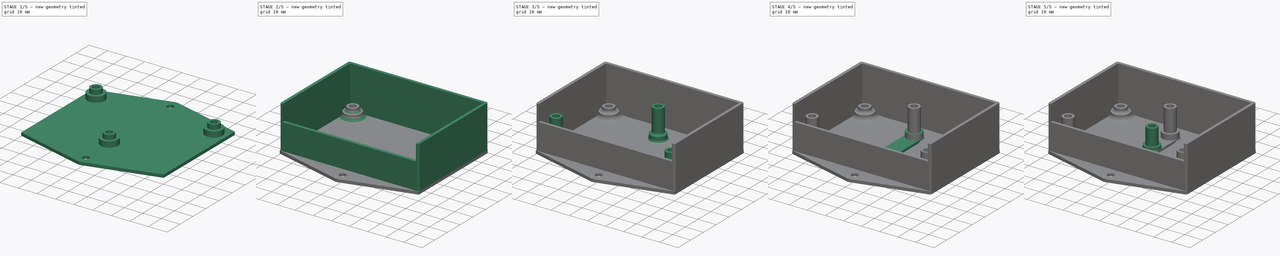
[diagram: build sequence overview — one tinted view per stage of 5, left to right]
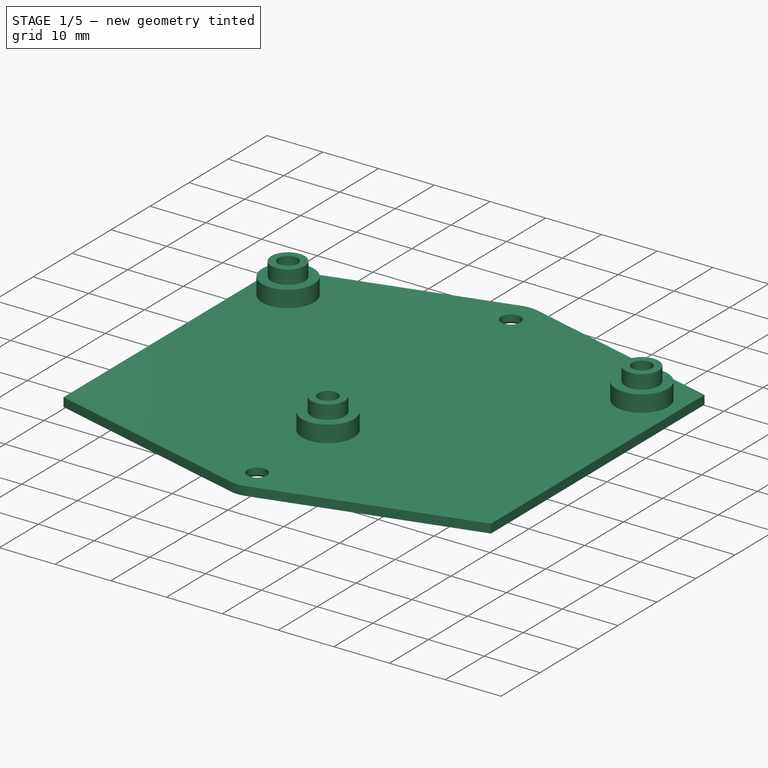
[diagram: stage 1 of 5 — iso view after this stage's code; geometry added in this stage tinted green]
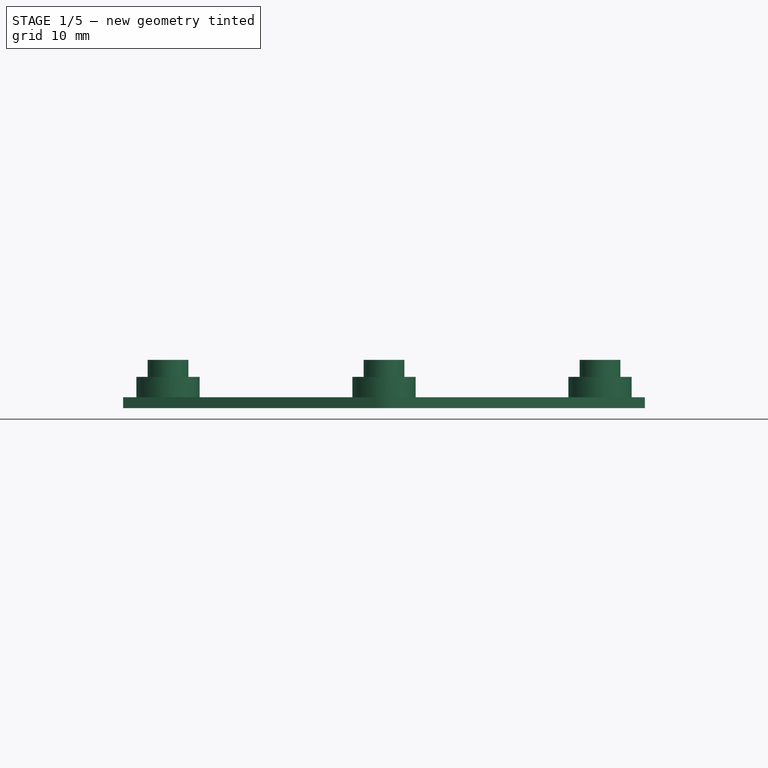
[diagram: stage 1 of 5 — front view after this stage's code; geometry added in this stage tinted green]
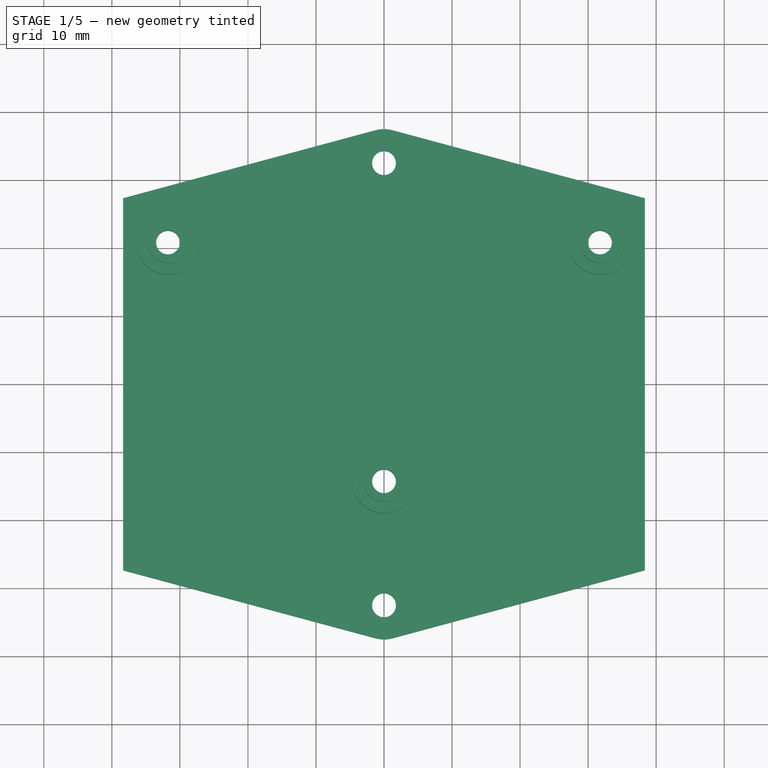
[diagram: stage 1 of 5 — top view after this stage's code; geometry added in this stage tinted green]
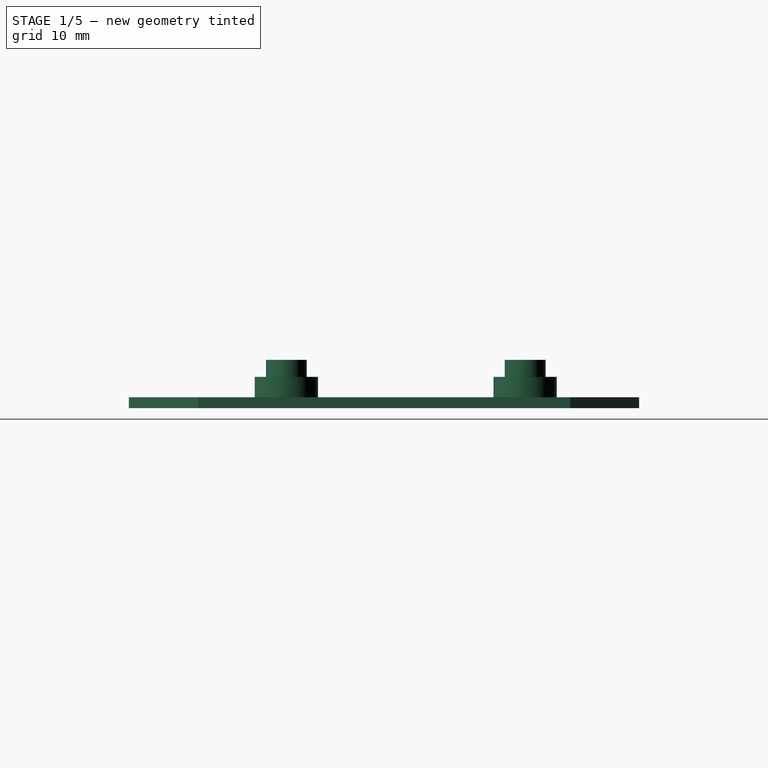
[diagram: stage 1 of 5 — right view after this stage's code; geometry added in this stage tinted green]
FCSTD DOCUMENT  (FreeCAD 0.16R)
Label: CarDetectorF030Case
License: All rights reserved
LicenseURL: http://en.wikipedia.org/wiki/All_rights_reserved
objects: Sketcher::SketchObject×20, PartDesign::Pad×14, PartDesign::Pocket×5, App::DocumentObjectGroup×5, PartDesign::Fillet×5, PartDesign::Chamfer×3
note: 66 computed .brp shape members not serialized (recipe doc carries the construction recipe); baked Part::Feature solids carry a one-line shape summary decoded from their .brp

FEATURE [Sketcher::SketchObject] Sketch  label="BottomBase"
  sketch-geometry (10):
    g0: LineSegment StartX=38.35 StartY=27.35 StartZ=0 EndX=38.35 EndY=-27.35 EndZ=0
    g1: LineSegment StartX=-38.35 StartY=-27.35 StartZ=0 EndX=-38.35 EndY=27.35 EndZ=0
    g2: Circle CenterX=0 CenterY=32.5 CenterZ=0 NormalX=0 NormalY=0 NormalZ=1 Radius=1.75
    g3: Circle CenterX=0 CenterY=-32.5 CenterZ=0 NormalX=0 NormalY=0 NormalZ=1 Radius=1.75
    g4: LineSegment StartX=-38.35 StartY=27.35 StartZ=0 EndX=-1.30022 EndY=37.328 EndZ=0
    g5: LineSegment StartX=38.35 StartY=27.35 StartZ=0 EndX=1.30024 EndY=37.328 EndZ=0
    g6: ArcOfCircle CenterX=0 CenterY=32.5 CenterZ=0 NormalX=0 NormalY=0 NormalZ=1 Radius=5 StartAngle=1.30772 EndAngle=1.83386
    g7: LineSegment StartX=-38.35 StartY=-27.35 StartZ=0 EndX=-1.30026 EndY=-37.328 EndZ=0
    g8: LineSegment StartX=38.35 StartY=-27.35 StartZ=0 EndX=1.30024 EndY=-37.328 EndZ=0
    g9: ArcOfCircle CenterX=0 CenterY=-32.5 CenterZ=0 NormalX=0 NormalY=0 NormalZ=1 Radius=5 StartAngle=4.44931 EndAngle=4.97546
  constraints (27):
    c: Vertical(g0)
    c: Coincident(g8,g9)
    c: Coincident(g3,g9)
    c: Coincident(g7,g9)
    c: Coincident(g5,g6)
    c: Coincident(g4,g6)
    c: Coincident(g2,g6)
    c: PointOnObject(g2,g-2)
    c: DistanceX(g1,g0) = 76.7
    c: Tangent(g6,g4)
    c: Tangent(g9,g7)
    c: Tangent(g9,g8)
    c: Radius(g6) = 5
    c: Radius(g2) = 1.75
    c: Equal(g6,g9)
    c: Equal(g3,g2)
    c: DistanceY(g1,g1) = 54.7
    c: Symmetric(g2,g3,g-1)
    c: DistanceY(g3,g2) = 65
    c: Coincident(g0,g5)
    c: Tangent(g5,g6)
    c: Coincident(g4,g1)
    c: Coincident(g8,g0)
    c: Coincident(g7,g1)
    c: Symmetric(g1,g0,g-2)
    c: Symmetric(g1,g0,g-2)
    c: Symmetric(g1,g1,g-1)
FEATURE [PartDesign::Pad] Pad
  Length = 1.6
  Length2 = 100
  Sketch = -> Sketch
  Type = 0
FEATURE [Sketcher::SketchObject] Sketch001  label="BottomNutHolders"
  Placement = pos=(0,0,1.6) rot=(0,0,1;0rad)
  Support = -> Pad [Face12]
  sketch-geometry (14):
    g0: LineSegment [constr] StartX=38.35 StartY=27.35 StartZ=0 EndX=38.35 EndY=-27.35 EndZ=0
    g1: LineSegment [constr] StartX=-38.35 StartY=-27.35 StartZ=0 EndX=-38.35 EndY=27.35 EndZ=0
    g2: LineSegment [constr] StartX=38.35 StartY=27.35 StartZ=0 EndX=-38.35 EndY=27.35 EndZ=0
    g3: LineSegment [constr] StartX=38.35 StartY=-27.35 StartZ=0 EndX=-38.35 EndY=-27.35 EndZ=0
    g4: Circle CenterX=0 CenterY=-14.35 CenterZ=0 NormalX=0 NormalY=0 NormalZ=1 Radius=4.65
    g5: Circle CenterX=0 CenterY=-14.35 CenterZ=0 NormalX=0 NormalY=0 NormalZ=1 Radius=1.75
    g6: Circle CenterX=-31.75 CenterY=20.75 CenterZ=0 NormalX=0 NormalY=0 NormalZ=1 Radius=4.65
    g7: Circle CenterX=31.75 CenterY=20.75 CenterZ=0 NormalX=0 NormalY=0 NormalZ=1 Radius=4.65
    g8: Circle CenterX=-31.75 CenterY=20.75 CenterZ=0 NormalX=0 NormalY=0 NormalZ=1 Radius=1.75
    g9: Circle CenterX=31.75 CenterY=20.75 CenterZ=0 NormalX=0 NormalY=0 NormalZ=1 Radius=1.75
    g10: LineSegment [constr] StartX=-36.25 StartY=25.25 StartZ=0 EndX=36.25 EndY=25.25 EndZ=0
    g11: LineSegment [constr] StartX=36.25 StartY=25.25 StartZ=0 EndX=36.25 EndY=-25.25 EndZ=0
    g12: LineSegment [constr] StartX=36.25 StartY=-25.25 StartZ=0 EndX=-36.25 EndY=-25.25 EndZ=0
    g13: LineSegment [constr] StartX=-36.25 StartY=-25.25 StartZ=0 EndX=-36.25 EndY=25.25 EndZ=0
  constraints (36):
    c: Horizontal(g2)
    c: Horizontal(g3)
    c: Vertical(g1)
    c: Vertical(g0)
    c: Coincident(g0,g3)
    c: Coincident(g0,g2)
    c: Symmetric(g1,g0,g-1)
    c: Coincident(g1,g3)
    c: Coincident(g1,g2)
    c: PointOnObject(g4,g-2)
    c: Radius(g4) = 4.65
    c: Coincident(g5,g4)
    c: Radius(g5) = 1.75
    c: Symmetric(g6,g7,g-2)
    c: Equal(g4,g6)
    c: Equal(g6,g7)
    c: Coincident(g8,g6)
    c: Coincident(g9,g7)
    c: Equal(g5,g9)
    c: Equal(g9,g8)
    c: Coincident(g10,g11)
    c: Coincident(g11,g12)
    c: Coincident(g12,g13)
    c: Coincident(g13,g10)
    c: Horizontal(g10)
    c: Horizontal(g12)
    c: Vertical(g11)
    c: Vertical(g13)
    c: Symmetric(g10,g11,g-1)
    c: DistanceX(g1,g10) = 2.1
    c: DistanceY(g10,g1) = 2.1
    c: DistanceY(g11,g4) = 10.9
    c: DistanceY(g6,g10) = 4.5
    c: DistanceX(g10,g6) = 4.5
    c: DistanceY(g12,g10) = 50.5
    c: DistanceX(g10,g10) = 72.5
FEATURE [PartDesign::Pad] Pad001
  Length = 3
  Length2 = 100
  Sketch = -> Sketch001
  Type = 0
FEATURE [App::DocumentObjectGroup] Group002  label="Top"
  Group = -> [Pad008,Pad009,Pocket002,Chamfer002,Pad010,Fillet001,Fillet004,Pocket005]
FEATURE [PartDesign::Pocket] Pocket
  Length = 3
  Sketch = -> Sketch015
  Type = 0
FEATURE [PartDesign::Chamfer] Chamfer
  Base = -> Pocket [Edge26,Edge25,Edge24,Edge23,Edge22,Edge27,Edge28,Edge29,Edge21,Edge16,Edge17,Edge18,Edge19,Edge20,Edge30,Edge31,Edge32,Edge33,Edge34,Edge35]
  Size = 0.4
FEATURE [Sketcher::SketchObject] Sketch003  label="BottomScrewPipes"
  ExternalGeometry = -> [Pad001]
  Placement = pos=(0,0,4.6) rot=(0,0,1;0rad)
  Support = -> Chamfer [Face58]
  sketch-geometry (6):
    g0: Circle CenterX=31.75 CenterY=20.75 CenterZ=0 NormalX=0 NormalY=0 NormalZ=1 Radius=1.75
    g1: Circle CenterX=31.75 CenterY=20.75 CenterZ=0 NormalX=0 NormalY=0 NormalZ=1 Radius=3
    g2: Circle CenterX=0 CenterY=-14.35 CenterZ=0 NormalX=0 NormalY=0 NormalZ=1 Radius=1.75
    g3: Circle CenterX=0 CenterY=-14.35 CenterZ=0 NormalX=0 NormalY=0 NormalZ=1 Radius=3
    g4: Circle CenterX=-31.75 CenterY=20.75 CenterZ=0 NormalX=0 NormalY=0 NormalZ=1 Radius=1.75
    g5: Circle CenterX=-31.75 CenterY=20.75 CenterZ=0 NormalX=0 NormalY=0 NormalZ=1 Radius=3
  constraints (12):
    c: Coincident(g1,g0)
    c: Radius(g1) = 3
    c: Radius(g0) = 1.75
    c: Coincident(g3,g2)
    c: Coincident(g5,g4)
    c: Equal(g0,g2)
    c: Equal(g2,g4)
    c: Equal(g1,g3)
    c: Equal(g3,g5)
    c: Coincident(g2,g-3)
    c: Coincident(g4,g-4)
    c: Coincident(g0,g-5)
FEATURE [PartDesign::Pad] Pad014
  Length = 2.5
  Length2 = 100
  Sketch = -> Sketch003
  Type = 0
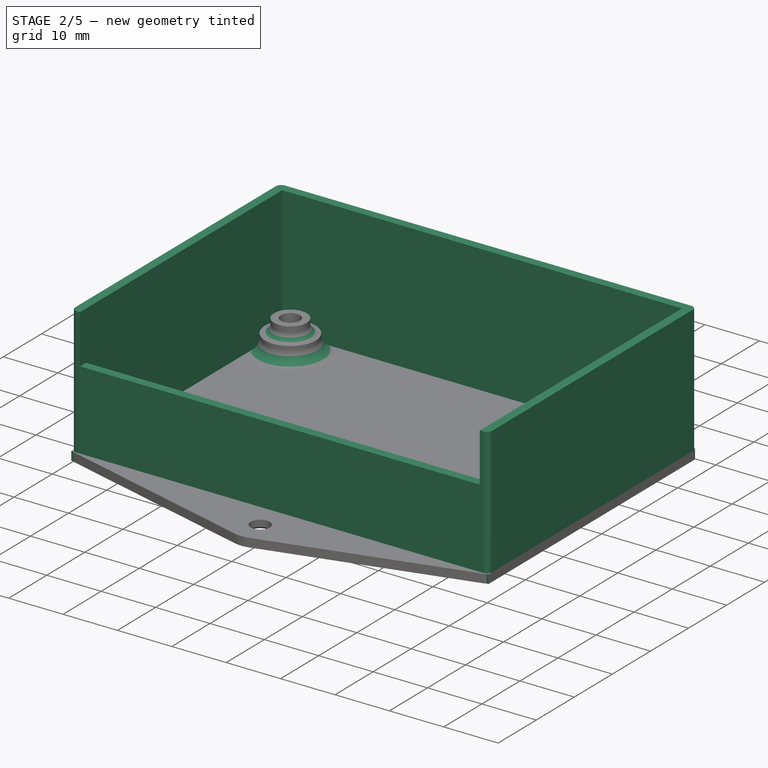
[diagram: stage 2 of 5 — iso view after this stage's code; geometry added in this stage tinted green]
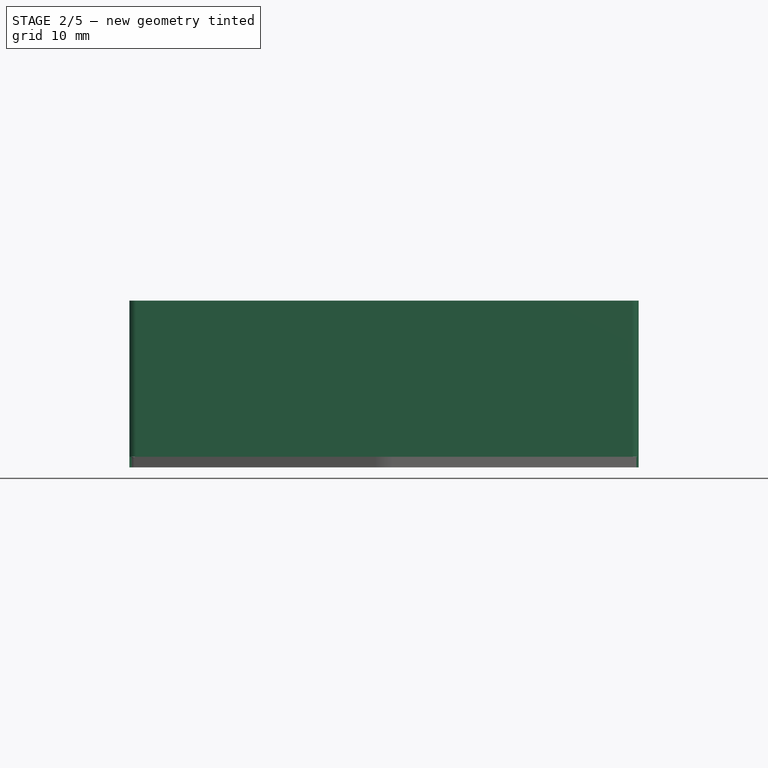
[diagram: stage 2 of 5 — front view after this stage's code; geometry added in this stage tinted green]
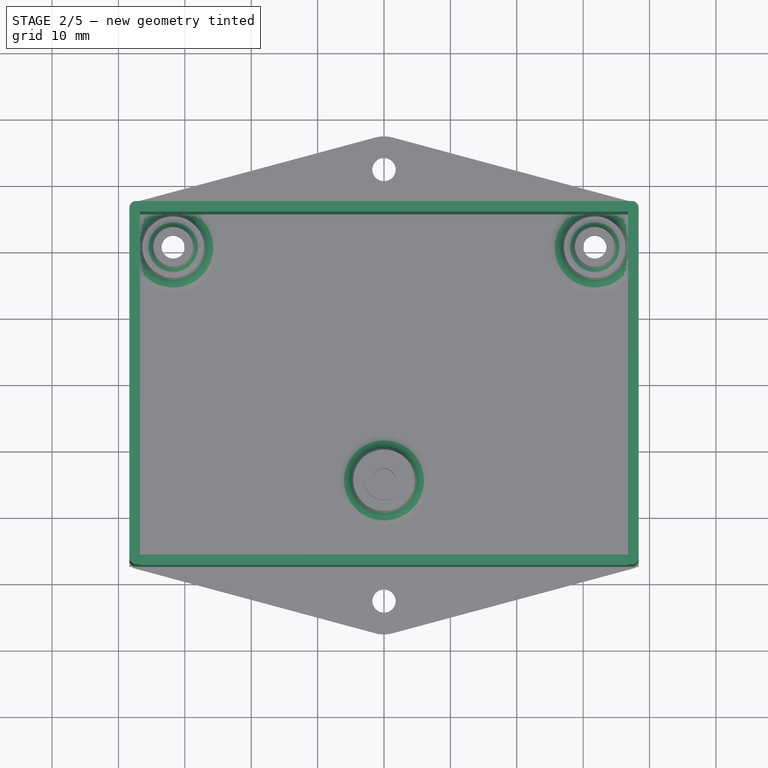
[diagram: stage 2 of 5 — top view after this stage's code; geometry added in this stage tinted green]
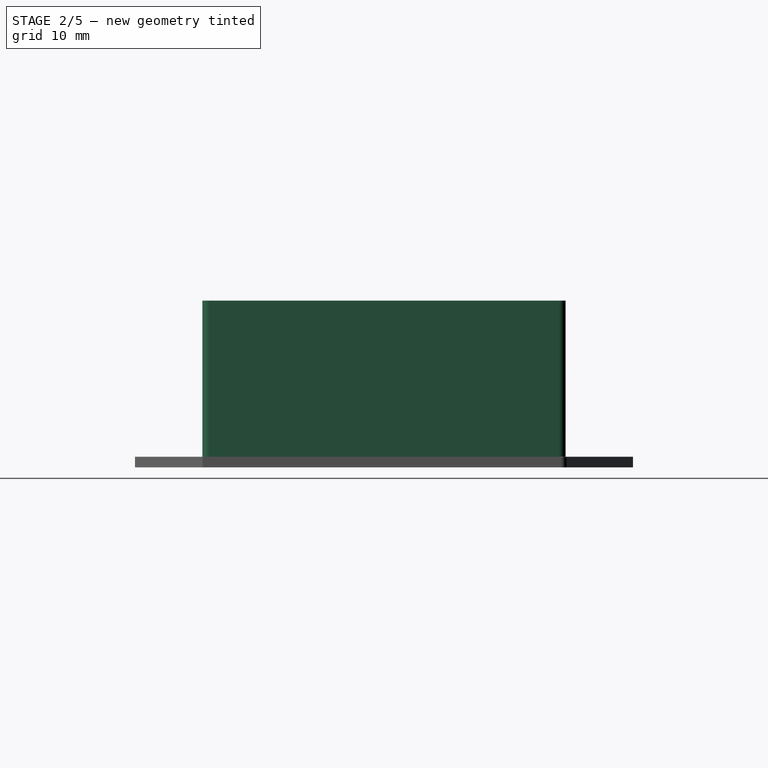
[diagram: stage 2 of 5 — right view after this stage's code; geometry added in this stage tinted green]
FEATURE [App::DocumentObjectGroup] Group001  label="Test"
  Group = -> [Pad004,Pad005,Pocket001,Pad006,Chamfer001]
FEATURE [Sketcher::SketchObject] Sketch011  label="TopBase"
  sketch-geometry (7):
    g0: LineSegment StartX=38.35 StartY=18.65 StartZ=0 EndX=38.35 EndY=-27.35 EndZ=0
    g1: LineSegment StartX=-38.35 StartY=-27.35 StartZ=0 EndX=-38.35 EndY=18.65 EndZ=0
    g2: LineSegment StartX=-38.35 StartY=-27.35 StartZ=0 EndX=38.35 EndY=-27.35 EndZ=0
    g3: LineSegment [constr] StartX=-38.35 StartY=27.35 StartZ=0 EndX=38.35 EndY=27.35 EndZ=0
    g4: LineSegment [constr] StartX=-38.35 StartY=18.65 StartZ=0 EndX=-38.35 EndY=27.35 EndZ=0
    g5: LineSegment [constr] StartX=38.35 StartY=27.35 StartZ=0 EndX=38.35 EndY=18.65 EndZ=0
    g6: LineSegment StartX=-38.35 StartY=18.65 StartZ=0 EndX=38.35 EndY=18.65 EndZ=0
  constraints (19):
    c: Horizontal(g2)
    c: Vertical(g1)
    c: Vertical(g0)
    c: Coincident(g1,g2)
    c: Coincident(g0,g2)
    c: Horizontal(g3)
    c: Coincident(g4,g1)
    c: Coincident(g4,g3)
    c: Vertical(g4)
    c: DistanceY(g1,g3) = 54.7
    c: Symmetric(g0,g3,g-1)
    c: DistanceX(g1,g0) = 76.7
    c: Coincident(g5,g3)
    c: Coincident(g5,g0)
    c: Vertical(g5)
    c: Equal(g4,g5)
    c: Coincident(g6,g1)
    c: Coincident(g6,g0)
    c: DistanceY(g5,g5) = 8.7
FEATURE [Sketcher::SketchObject] Sketch012  label="__base__"
  sketch-geometry (4):
    g0: LineSegment StartX=38.35 StartY=27.35 StartZ=0 EndX=38.35 EndY=-27.35 EndZ=0
    g1: LineSegment StartX=-38.35 StartY=-27.35 StartZ=0 EndX=-38.35 EndY=27.35 EndZ=0
    g2: LineSegment StartX=-38.35 StartY=27.35 StartZ=0 EndX=38.35 EndY=27.35 EndZ=0
    g3: LineSegment StartX=-38.35 StartY=-27.35 StartZ=0 EndX=38.35 EndY=-27.35 EndZ=0
  constraints (11):
    c: Horizontal(g2)
    c: Horizontal(g3)
    c: Vertical(g1)
    c: Vertical(g0)
    c: Coincident(g1,g3)
    c: Coincident(g1,g2)
    c: Symmetric(g1,g0,g-1)
    c: DistanceX(g1,g0) = 76.7
    c: DistanceY(g1,g1) = 54.7
    c: Coincident(g0,g3)
    c: Coincident(g0,g2)
FEATURE [PartDesign::Pad] Pad008
  Length = 1.6
  Length2 = 100
  Sketch = -> Sketch011
  Type = 0
FEATURE [Sketcher::SketchObject] Sketch005  label="BottomWalls"
  Placement = pos=(0,0,1.6) rot=(0,0,1;0rad)
  Support = -> Pad014 [Face36]
  sketch-geometry (8):
    g0: LineSegment StartX=38.35 StartY=27.35 StartZ=0 EndX=38.35 EndY=-27.35 EndZ=0
    g1: LineSegment StartX=-38.35 StartY=-27.35 StartZ=0 EndX=-38.35 EndY=27.35 EndZ=0
    g2: LineSegment StartX=38.35 StartY=27.35 StartZ=0 EndX=-38.35 EndY=27.35 EndZ=0
    g3: LineSegment StartX=38.35 StartY=-27.35 StartZ=0 EndX=-38.35 EndY=-27.35 EndZ=0
    g4: LineSegment StartX=-36.75 StartY=25.75 StartZ=0 EndX=36.75 EndY=25.75 EndZ=0
    g5: LineSegment StartX=36.75 StartY=25.75 StartZ=0 EndX=36.75 EndY=-25.75 EndZ=0
    g6: LineSegment StartX=36.75 StartY=-25.75 StartZ=0 EndX=-36.75 EndY=-25.75 EndZ=0
    g7: LineSegment StartX=-36.75 StartY=-25.75 StartZ=0 EndX=-36.75 EndY=25.75 EndZ=0
  constraints (22):
    c: Horizontal(g2)
    c: Horizontal(g3)
    c: Vertical(g1)
    c: Vertical(g0)
    c: Coincident(g0,g3)
    c: Coincident(g0,g2)
    c: Symmetric(g1,g0,g-1)
    c: DistanceX(g1,g0) = 76.7
    c: DistanceY(g1,g1) = 54.7
    c: Coincident(g1,g3)
    c: Coincident(g1,g2)
    c: Coincident(g4,g5)
    c: Coincident(g5,g6)
    c: Coincident(g6,g7)
    c: Coincident(g7,g4)
    c: Horizontal(g4)
    c: Horizontal(g6)
    c: Vertical(g5)
    c: Vertical(g7)
    c: Symmetric(g4,g5,g-1)
    c: DistanceX(g1,g4) = 1.6
    c: DistanceY(g4,g1) = 1.6
FEATURE [PartDesign::Pad] Pad015
  Length = 14.5
  Length2 = 100
  Sketch = -> Sketch005
  Type = 0
FEATURE [Sketcher::SketchObject] Sketch010  label="BottomWallsExtra"
  Placement = pos=(0,0,16.1) rot=(0,0,1;0rad)
  Support = -> Pad015 [Face56]
  sketch-geometry (8):
    g0: LineSegment StartX=38.35 StartY=27.35 StartZ=0 EndX=38.35 EndY=-27.35 EndZ=0
    g1: LineSegment StartX=-38.35 StartY=-27.35 StartZ=0 EndX=-38.35 EndY=27.35 EndZ=0
    g2: LineSegment StartX=38.35 StartY=27.35 StartZ=0 EndX=-38.35 EndY=27.35 EndZ=0
    g3: LineSegment StartX=-36.75 StartY=25.75 StartZ=0 EndX=36.75 EndY=25.75 EndZ=0
    g4: LineSegment StartX=36.75 StartY=25.75 StartZ=0 EndX=36.75 EndY=-27.35 EndZ=0
    g5: LineSegment StartX=-36.75 StartY=-27.35 StartZ=0 EndX=-36.75 EndY=25.75 EndZ=0
    g6: LineSegment StartX=-36.75 StartY=-27.35 StartZ=0 EndX=-38.35 EndY=-27.35 EndZ=0
    g7: LineSegment StartX=36.75 StartY=-27.35 StartZ=0 EndX=38.35 EndY=-27.35 EndZ=0
  constraints (23):
    c: Horizontal(g2)
    c: Vertical(g1)
    c: Vertical(g0)
    c: Coincident(g0,g2)
    c: Symmetric(g1,g0,g-1)
    c: DistanceX(g1,g0) = 76.7
    c: DistanceY(g1,g1) = 54.7
    c: Coincident(g1,g2)
    c: Coincident(g3,g4)
    c: Coincident(g5,g3)
    c: Horizontal(g3)
    c: Vertical(g4)
    c: Vertical(g5)
    c: DistanceY(g3,g1) = 1.6
    c: Coincident(g6,g5)
    c: Coincident(g6,g1)
    c: Horizontal(g6)
    c: Coincident(g7,g4)
    c: Coincident(g7,g0)
    c: Horizontal(g7)
    c: DistanceX(g7,g7) = 1.6
    c: Equal(g6,g7)
    c: Equal(g1,g0)
FEATURE [PartDesign::Pad] Pad016
  Length = 9
  Length2 = 100
  Sketch = -> Sketch010
  Type = 0
FEATURE [PartDesign::Fillet] Fillet
  Base = -> Pad016 [Edge50,Edge106,Edge143,Edge54,Edge104,Edge141,Edge45,Edge101,Edge137,Edge41,Edge99,Edge135]
  Radius = 1
FEATURE [PartDesign::Fillet] Fillet005
  Base = -> Fillet [Edge227,Edge226,Edge228]
  Radius = 2.4
FEATURE [PartDesign::Fillet] Fillet006
  Base = -> Fillet005 [Edge96,Edge77]
  Radius = 1.5
FEATURE [App::DocumentObjectGroup] Group  label="Bottom"
  Group = -> [Pad,Pad001,Pocket,Chamfer,Pad014,Pad015,Pad016,Fillet,Fillet005,Fillet006]
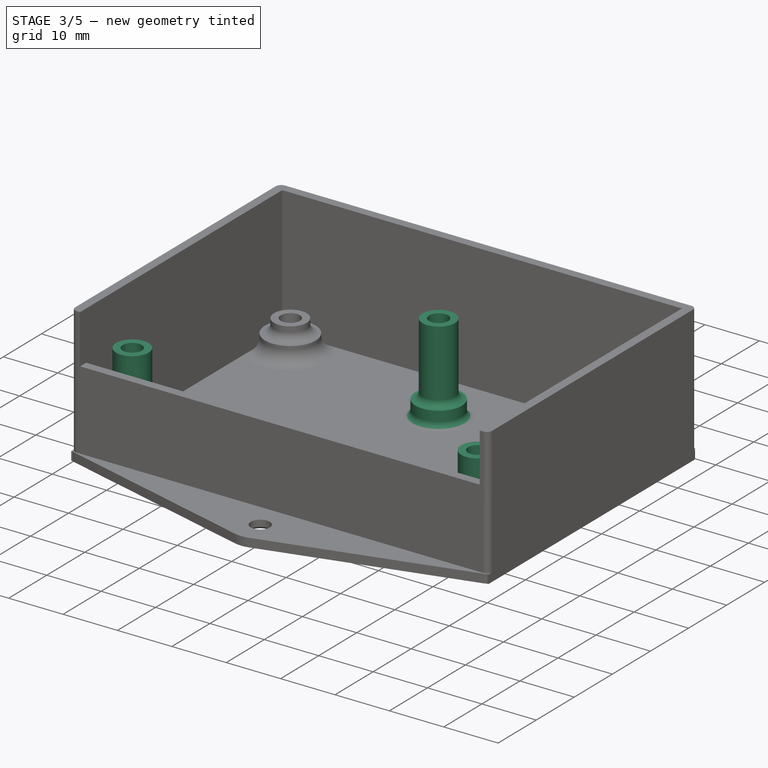
[diagram: stage 3 of 5 — iso view after this stage's code; geometry added in this stage tinted green]
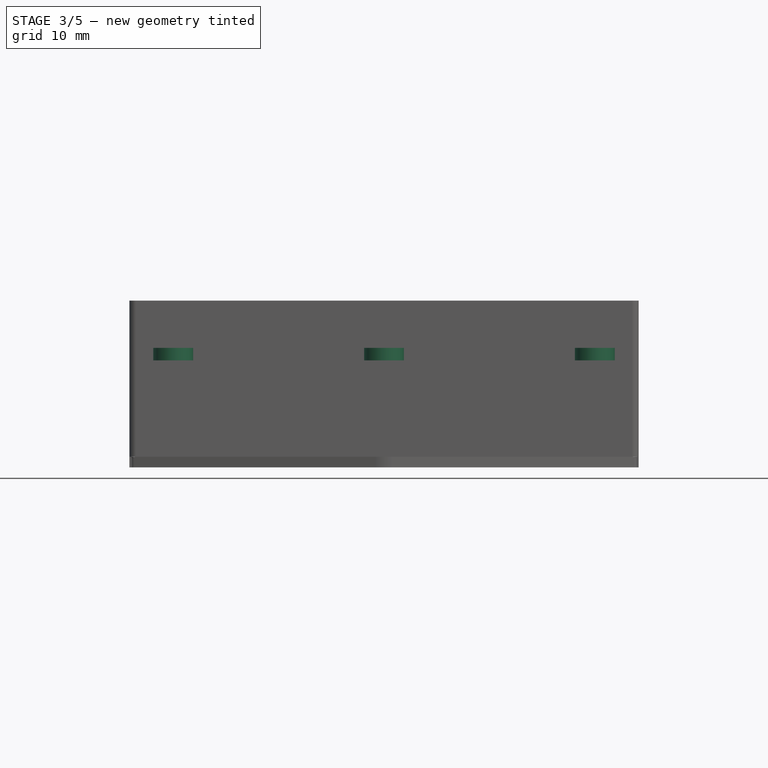
[diagram: stage 3 of 5 — front view after this stage's code; geometry added in this stage tinted green]
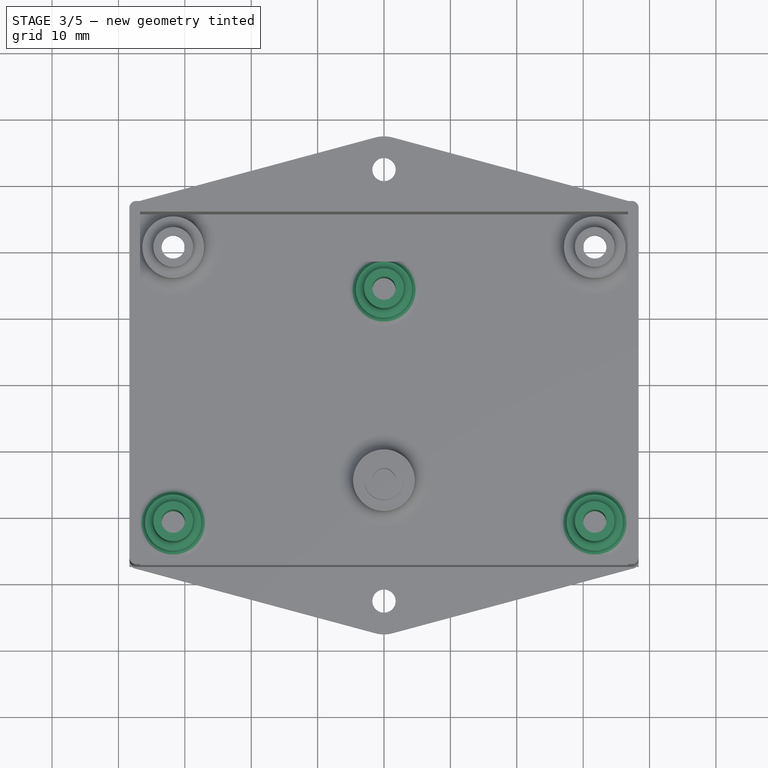
[diagram: stage 3 of 5 — top view after this stage's code; geometry added in this stage tinted green]
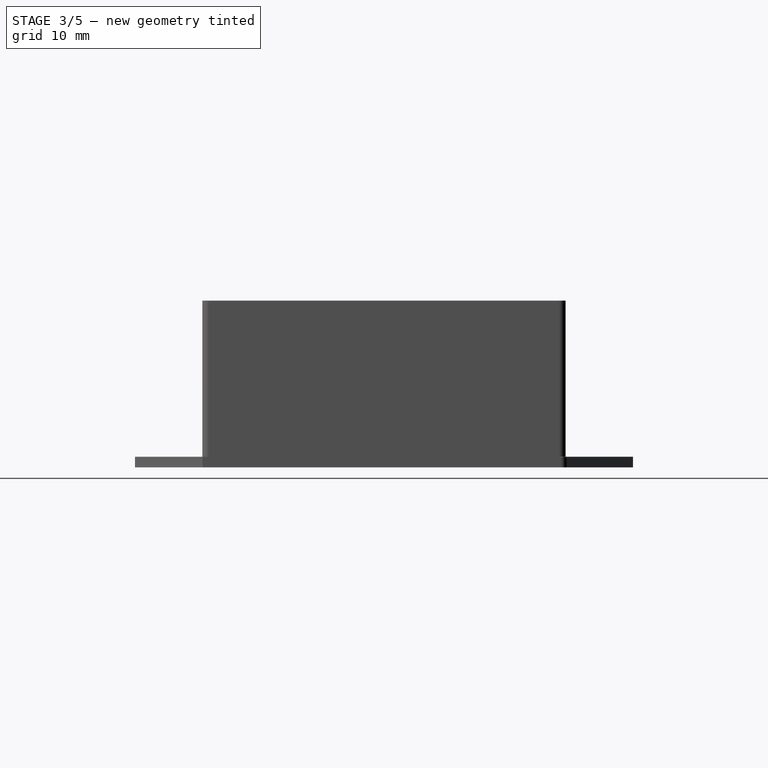
[diagram: stage 3 of 5 — right view after this stage's code; geometry added in this stage tinted green]
FEATURE [Sketcher::SketchObject] MirroredSketch  label="TopScrewHeadHolders"
  Placement = pos=(0,0,1.6) rot=(0,0,1;0rad)
  Support = -> Pad008 [Face6]
  sketch-geometry (14):
    g0: LineSegment [constr] StartX=38.35 StartY=-27.35 StartZ=0 EndX=38.35 EndY=27.35 EndZ=0
    g1: LineSegment [constr] StartX=-38.35 StartY=27.35 StartZ=0 EndX=-38.35 EndY=-27.35 EndZ=0
    g2: LineSegment [constr] StartX=38.35 StartY=-27.35 StartZ=0 EndX=-38.35 EndY=-27.35 EndZ=0
    g3: LineSegment [constr] StartX=38.35 StartY=27.35 StartZ=0 EndX=-38.35 EndY=27.35 EndZ=0
    g4: Circle CenterX=0 CenterY=14.35 CenterZ=0 NormalX=0 NormalY=0 NormalZ=1 Radius=4.25
    g5: Circle CenterX=0 CenterY=14.35 CenterZ=0 NormalX=0 NormalY=0 NormalZ=1 Radius=1.75
    g6: Circle CenterX=-31.75 CenterY=-20.75 CenterZ=0 NormalX=0 NormalY=0 NormalZ=1 Radius=4.25
    g7: Circle CenterX=31.75 CenterY=-20.75 CenterZ=0 NormalX=0 NormalY=0 NormalZ=1 Radius=4.25
    g8: Circle CenterX=-31.75 CenterY=-20.75 CenterZ=0 NormalX=0 NormalY=0 NormalZ=1 Radius=1.75
    g9: Circle CenterX=31.75 CenterY=-20.75 CenterZ=0 NormalX=0 NormalY=0 NormalZ=1 Radius=1.75
    g10: LineSegment [constr] StartX=-36.25 StartY=25.25 StartZ=0 EndX=36.25 EndY=25.25 EndZ=0
    g11: LineSegment [constr] StartX=36.25 StartY=25.25 StartZ=0 EndX=36.25 EndY=-25.25 EndZ=0
    g12: LineSegment [constr] StartX=36.25 StartY=-25.25 StartZ=0 EndX=-36.25 EndY=-25.25 EndZ=0
    g13: LineSegment [constr] StartX=-36.25 StartY=-25.25 StartZ=0 EndX=-36.25 EndY=25.25 EndZ=0
  constraints (36):
    c: Horizontal(g2)
    c: Horizontal(g3)
    c: Vertical(g1)
    c: Vertical(g0)
    c: Coincident(g0,g3)
    c: Coincident(g0,g2)
    c: Coincident(g1,g3)
    c: Coincident(g1,g2)
    c: Radius(g4) = 4.25
    c: Coincident(g5,g4)
    c: Radius(g5) = 1.75
    c: Equal(g4,g6)
    c: Equal(g6,g7)
    c: Coincident(g8,g6)
    c: Coincident(g9,g7)
    c: Equal(g5,g9)
    c: Equal(g9,g8)
    c: Symmetric(g6,g7,g-2)
    c: DistanceX(g1,g0) = 76.7
    c: DistanceY(g1,g1) = 54.7
    c: Symmetric(g0,g1,g-1)
    c: PointOnObject(g4,g-2)
    c: Coincident(g10,g11)
    c: Coincident(g11,g12)
    c: Coincident(g12,g13)
    c: Coincident(g13,g10)
    c: Horizontal(g10)
    c: Horizontal(g12)
    c: Vertical(g11)
    c: Vertical(g13)
    c: Symmetric(g10,g11,g-1)
    c: DistanceX(g1,g10) = 2.1
    c: DistanceY(g10,g1) = 2.1
    c: DistanceY(g4,g10) = 10.9
    c: DistanceX(g12,g6) = 4.5
    c: DistanceY(g12,g6) = 4.5
FEATURE [PartDesign::Pad] Pad009
  Length = 3
  Length2 = 100
  Sketch = -> MirroredSketch
  Type = 0
FEATURE [Sketcher::SketchObject] Sketch013  label="TopScrewHeadHoles"
  ExternalGeometry = -> [Pad009]
  Placement = pos=(0,0,0) rot=(1,0,0;3.14159rad)
  Support = -> Pad009 [Face4]
  sketch-geometry (3):
    g0: Circle CenterX=-31.75 CenterY=20.75 CenterZ=0 NormalX=0 NormalY=0 NormalZ=1 Radius=3
    g1: Circle CenterX=31.75 CenterY=20.75 CenterZ=0 NormalX=0 NormalY=0 NormalZ=1 Radius=3
    g2: Circle CenterX=0 CenterY=-14.35 CenterZ=0 NormalX=0 NormalY=0 NormalZ=1 Radius=3
  constraints (6):
    c: Coincident(g0,g-3)
    c: Coincident(g1,g-4)
    c: Coincident(g2,g-5)
    c: Equal(g1,g0)
    c: Equal(g0,g2)
    c: Radius(g0) = 3
FEATURE [PartDesign::Pocket] Pocket002
  Length = 3
  Sketch = -> Sketch013
  Type = 0
FEATURE [PartDesign::Chamfer] Chamfer002
  Base = -> Pocket002 [Edge12,Edge13,Edge14]
  Size = 0.4
FEATURE [Sketcher::SketchObject] Sketch014  label="TopScrewPipes"
  ExternalGeometry = -> [Pocket002]
  Placement = pos=(0,0,4.6) rot=(0,0,1;0rad)
  Support = -> Chamfer002 [Face21]
  sketch-geometry (6):
    g0: Circle CenterX=0 CenterY=14.35 CenterZ=0 NormalX=0 NormalY=0 NormalZ=1 Radius=1.75
    g1: Circle CenterX=0 CenterY=14.35 CenterZ=0 NormalX=0 NormalY=0 NormalZ=1 Radius=3
    g2: Circle CenterX=31.75 CenterY=-20.75 CenterZ=0 NormalX=0 NormalY=0 NormalZ=1 Radius=1.75
    g3: Circle CenterX=31.75 CenterY=-20.75 CenterZ=0 NormalX=0 NormalY=0 NormalZ=1 Radius=3
    g4: Circle CenterX=-31.75 CenterY=-20.75 CenterZ=0 NormalX=0 NormalY=0 NormalZ=1 Radius=1.75
    g5: Circle CenterX=-31.75 CenterY=-20.75 CenterZ=0 NormalX=0 NormalY=0 NormalZ=1 Radius=3
  constraints (12):
    c: Coincident(g0,g-3)
    c: Coincident(g1,g0)
    c: Coincident(g2,g-4)
    c: Coincident(g3,g2)
    c: Coincident(g4,g-5)
    c: Coincident(g5,g4)
    c: Equal(g0,g4)
    c: Equal(g4,g2)
    c: Equal(g1,g3)
    c: Equal(g3,g5)
    c: Radius(g0) = 1.75
    c: Radius(g1) = 3
FEATURE [PartDesign::Pad] Pad010
  Length = 13.4
  Length2 = 100
  Sketch = -> Sketch014
  Type = 0
FEATURE [App::DocumentObjectGroup] Group003  label="TMP"
FEATURE [Sketcher::SketchObject] Sketch015  label="BottomNutHoles"
  ExternalGeometry = -> [Pad001]
  Placement = pos=(0,0,0) rot=(1,0,0;3.14159rad)
  Support = -> Pad001 [Face4]
  sketch-geometry (21):
    g0: LineSegment StartX=1.65 StartY=11.4921 StartZ=0 EndX=3.3 EndY=14.35 EndZ=0
    g1: LineSegment StartX=3.3 StartY=14.35 StartZ=0 EndX=1.65 EndY=17.2079 EndZ=0
    g2: LineSegment StartX=1.65 StartY=17.2079 StartZ=0 EndX=-1.65 EndY=17.2079 EndZ=0
    g3: LineSegment StartX=-1.65 StartY=17.2079 StartZ=0 EndX=-3.3 EndY=14.35 EndZ=0
    g4: LineSegment StartX=-3.3 StartY=14.35 StartZ=0 EndX=-1.65 EndY=11.4921 EndZ=0
    g5: LineSegment StartX=-1.65 StartY=11.4921 StartZ=0 EndX=1.65 EndY=11.4921 EndZ=0
    g6: Circle [constr] CenterX=0 CenterY=14.35 CenterZ=0 NormalX=0 NormalY=0 NormalZ=1 Radius=3.3
    g7: LineSegment StartX=33.4 StartY=-23.6079 StartZ=0 EndX=35.05 EndY=-20.75 EndZ=0
    g8: LineSegment StartX=35.05 StartY=-20.75 StartZ=0 EndX=33.4 EndY=-17.8921 EndZ=0
    g9: LineSegment StartX=33.4 StartY=-17.8921 StartZ=0 EndX=30.1 EndY=-17.8921 EndZ=0
    g10: LineSegment StartX=30.1 StartY=-17.8921 StartZ=0 EndX=28.45 EndY=-20.75 EndZ=0
    g11: LineSegment StartX=28.45 StartY=-20.75 StartZ=0 EndX=30.1 EndY=-23.6079 EndZ=0
    g12: LineSegment StartX=30.1 StartY=-23.6079 StartZ=0 EndX=33.4 EndY=-23.6079 EndZ=0
    g13: Circle [constr] CenterX=31.75 CenterY=-20.75 CenterZ=0 NormalX=0 NormalY=0 NormalZ=1 Radius=3.3
    g14: LineSegment StartX=-30.1 StartY=-23.6079 StartZ=0 EndX=-28.45 EndY=-20.75 EndZ=0
    g15: LineSegment StartX=-28.45 StartY=-20.75 StartZ=0 EndX=-30.1 EndY=-17.8921 EndZ=0
    g16: LineSegment StartX=-30.1 StartY=-17.8921 StartZ=0 EndX=-33.4 EndY=-17.8921 EndZ=0
    g17: LineSegment StartX=-33.4 StartY=-17.8921 StartZ=0 EndX=-35.05 EndY=-20.75 EndZ=0
    g18: LineSegment StartX=-35.05 StartY=-20.75 StartZ=0 EndX=-33.4 EndY=-23.6079 EndZ=0
    g19: LineSegment StartX=-33.4 StartY=-23.6079 StartZ=0 EndX=-30.1 EndY=-23.6079 EndZ=0
    g20: Circle [constr] CenterX=-31.75 CenterY=-20.75 CenterZ=0 NormalX=0 NormalY=0 NormalZ=1 Radius=3.3
  constraints (48):
    c: Coincident(g0,g1)
    c: Coincident(g1,g2)
    c: Coincident(g2,g3)
    c: Coincident(g3,g4)
    c: Coincident(g4,g5)
    c: Coincident(g5,g0)
    c: Equal(g0, g1-g5) x5
    c: PointOnObject(g0,g6)
    c: PointOnObject(g1,g6)
    c: PointOnObject(g2,g6)
    c: PointOnObject(g3,g6)
    c: PointOnObject(g4,g6)
    c: PointOnObject(g5,g6)
    c: Coincident(g7,g8)
    c: Coincident(g8,g9)
    c: Coincident(g9,g10)
    c: Coincident(g10,g11)
    c: Coincident(g11,g12)
    c: Coincident(g12,g7)
    c: Equal(g7, g8-g12) x5
    c: PointOnObject(g7,g13)
    c: PointOnObject(g8,g13)
    c: PointOnObject(g9,g13)
    c: PointOnObject(g10,g13)
    c: PointOnObject(g11,g13)
    c: PointOnObject(g12,g13)
    c: Coincident(g14,g15)
    c: Coincident(g15,g16)
    c: Coincident(g16,g17)
    c: Coincident(g17,g18)
    c: Coincident(g18,g19)
    c: Coincident(g19,g14)
    c: Equal(g14, g15-g19) x5
    c: PointOnObject(g14,g20)
    c: PointOnObject(g15,g20)
    c: PointOnObject(g16,g20)
    c: PointOnObject(g17,g20)
    c: PointOnObject(g18,g20)
    c: PointOnObject(g19,g20)
    c: Horizontal(g2)
    c: Horizontal(g9)
    c: Horizontal(g16)
    c: Equal(g6,g13)
    c: Equal(g13,g20)
    c: Radius(g6) = 3.3
    c: Coincident(g13,g-4)
    c: Coincident(g20,g-5)
    c: Coincident(g6,g-3)
FEATURE [PartDesign::Fillet] Fillet001
  Base = -> Pad010 [Edge25,Edge43,Edge24,Edge42,Edge26,Edge44]
  Radius = 1.2
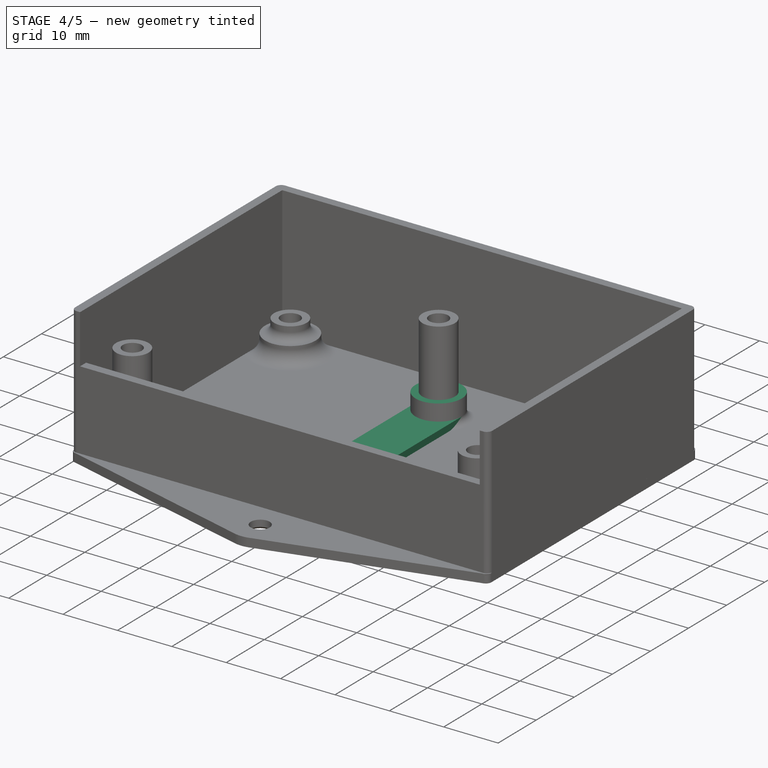
[diagram: stage 4 of 5 — iso view after this stage's code; geometry added in this stage tinted green]
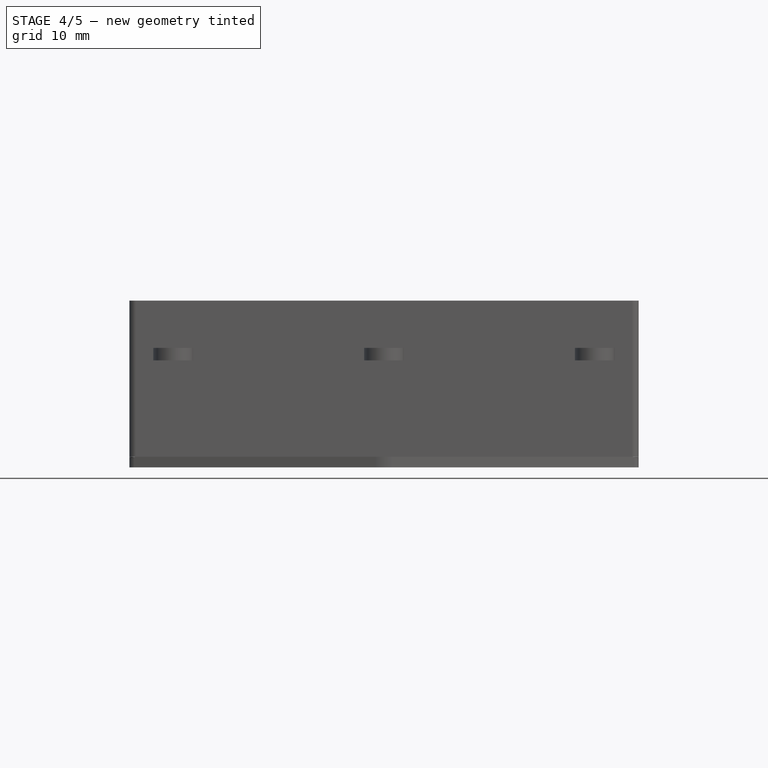
[diagram: stage 4 of 5 — front view after this stage's code; geometry added in this stage tinted green]
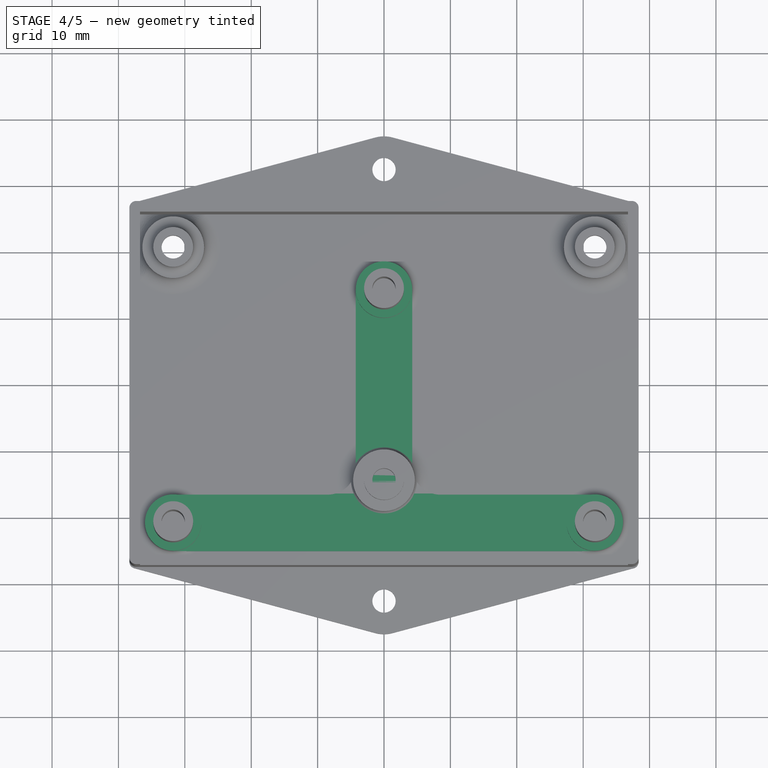
[diagram: stage 4 of 5 — top view after this stage's code; geometry added in this stage tinted green]
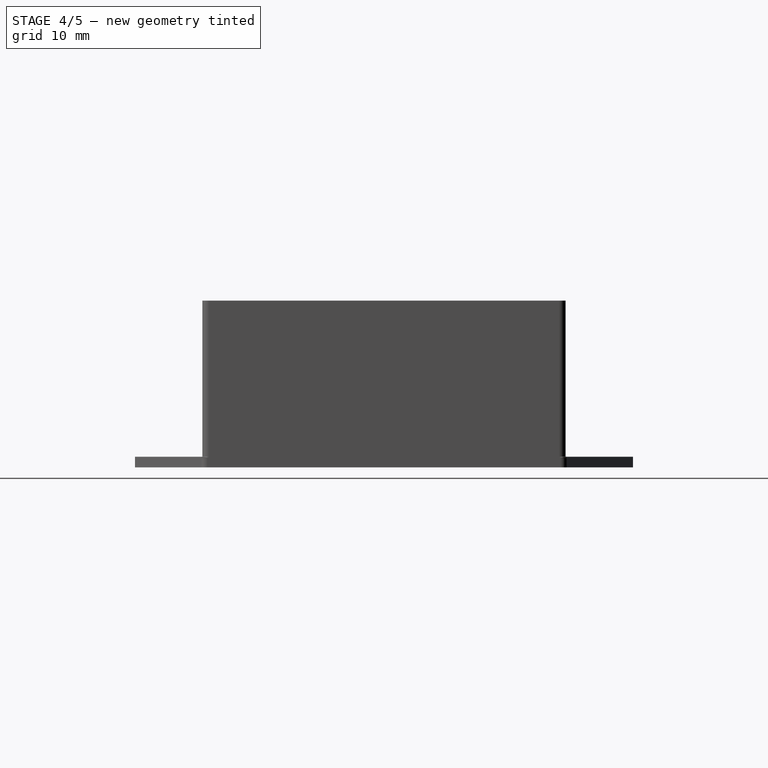
[diagram: stage 4 of 5 — right view after this stage's code; geometry added in this stage tinted green]
FEATURE [Sketcher::SketchObject] MirroredSketch001  label="Test2Base"
  Placement = pos=(0,0,1.6) rot=(0,0,1;0rad)
  sketch-geometry (21):
    g0: LineSegment [constr] StartX=38.35 StartY=-27.35 StartZ=0 EndX=38.35 EndY=27.35 EndZ=0
    g1: LineSegment [constr] StartX=-38.35 StartY=27.35 StartZ=0 EndX=-38.35 EndY=-27.35 EndZ=0
    g2: LineSegment [constr] StartX=38.35 StartY=-27.35 StartZ=0 EndX=-38.35 EndY=-27.35 EndZ=0
    g3: LineSegment [constr] StartX=38.35 StartY=27.35 StartZ=0 EndX=-38.35 EndY=27.35 EndZ=0
    g4: LineSegment [constr] StartX=-36.25 StartY=25.25 StartZ=0 EndX=36.25 EndY=25.25 EndZ=0
    g5: LineSegment [constr] StartX=36.25 StartY=25.25 StartZ=0 EndX=36.25 EndY=-25.25 EndZ=0
    g6: LineSegment [constr] StartX=36.25 StartY=-25.25 StartZ=0 EndX=-36.25 EndY=-25.25 EndZ=0
    g7: LineSegment [constr] StartX=-36.25 StartY=-25.25 StartZ=0 EndX=-36.25 EndY=25.25 EndZ=0
    g8: LineSegment [constr] StartX=4.25 StartY=14.35 StartZ=0 EndX=-4.25 EndY=14.35 EndZ=0
    g9: LineSegment StartX=-4.25 StartY=14.35 StartZ=0 EndX=-4.25 EndY=-12.25 EndZ=0
    g10: LineSegment StartX=-8.49999 StartY=-16.5 StartZ=0 EndX=-31.75 EndY=-16.5 EndZ=0
    g11: LineSegment [constr] StartX=-31.75 StartY=-16.5 StartZ=0 EndX=-31.75 EndY=-25 EndZ=0
    g12: LineSegment StartX=-31.75 StartY=-25 StartZ=0 EndX=31.75 EndY=-25 EndZ=0
    g13: LineSegment StartX=31.75 StartY=-16.5 StartZ=0 EndX=8.49999 EndY=-16.5 EndZ=0
    g14: LineSegment StartX=4.25 StartY=-12.25 StartZ=0 EndX=4.25 EndY=14.35 EndZ=0
    g15: ArcOfCircle CenterX=31.75 CenterY=-20.75 CenterZ=0 NormalX=0 NormalY=0 NormalZ=1 Radius=4.25 StartAngle=4.71239 EndAngle=7.85398
    g16: ArcOfCircle CenterX=0 CenterY=14.35 CenterZ=0 NormalX=0 NormalY=0 NormalZ=1 Radius=4.25 StartAngle=0 EndAngle=3.14159
    g17: ArcOfCircle CenterX=-31.75 CenterY=-20.75 CenterZ=0 NormalX=0 NormalY=0 NormalZ=1 Radius=4.25 StartAngle=1.5708 EndAngle=4.71239
    g18: LineSegment [constr] StartX=31.75 StartY=-16.5 StartZ=0 EndX=31.75 EndY=-25 EndZ=0
    g19: ArcOfCircle CenterX=-8.5 CenterY=-12.25 CenterZ=0 NormalX=0 NormalY=0 NormalZ=1 Radius=4.25 StartAngle=4.71239 EndAngle=6.28318
    g20: ArcOfCircle CenterX=8.49998 CenterY=-12.25 CenterZ=0 NormalX=0 NormalY=0 NormalZ=1 Radius=4.24998 StartAngle=3.14159 EndAngle=4.71239
  constraints (61):
    c: Horizontal(g2)
    c: Horizontal(g3)
    c: Vertical(g1)
    c: Vertical(g0)
    c: Coincident(g0,g3)
    c: Coincident(g0,g2)
    c: Coincident(g1,g3)
    c: Coincident(g1,g2)
    c: DistanceX(g1,g0) = 76.7
    c: DistanceY(g1,g1) = 54.7
    c: Symmetric(g0,g1,g-1)
    c: Coincident(g4,g5)
    c: Coincident(g5,g6)
    c: Coincident(g6,g7)
    c: Coincident(g7,g4)
    c: Horizontal(g4)
    c: Horizontal(g6)
    c: Vertical(g5)
    c: Vertical(g7)
    c: Symmetric(g4,g5,g-1)
    c: DistanceX(g1,g4) = 2.1
    c: DistanceY(g4,g1) = 2.1
    c: Horizontal(g8)
    c: Coincident(g8,g9)
    c: Vertical(g9)
    c: Horizontal(g10)
    c: Coincident(g10,g11)
    c: Vertical(g11)
    c: Coincident(g11,g12)
    c: Horizontal(g12)
    c: Horizontal(g13)
    c: Coincident(g14,g8)
    c: Vertical(g14)
    c: Coincident(g15,g13)
    c: Coincident(g15,g12)
    c: Coincident(g16,g8)
    c: Coincident(g16,g8)
    c: Radius(g16) = 4.25
    c: Coincident(g17,g10)
    c: Coincident(g17,g11)
    c: Equal(g16,g17)
    c: Symmetric(g9,g14,g-2)
    c: Symmetric(g10,g13,g-2)
    c: PointOnObject(g17,g11)
    c: Coincident(g18,g13)
    c: Coincident(g18,g12)
    c: Vertical(g18)
    c: PointOnObject(g15,g18)
    c: PointOnObject(g16,g8)
    c: Symmetric(g17,g15,g-2)
    c: DistanceY(g16,g4) = 10.9
    c: DistanceX(g6,g17) = 4.5
    c: DistanceY(g6,g17) = 4.5
    c: Coincident(g19,g9)
    c: Coincident(g19,g10)
    c: Coincident(g20,g14)
    c: Coincident(g20,g13)
    c: Tangent(g19,g9)
    c: Tangent(g10,g19)
    c: Tangent(g20,g13)
    c: Equal(g16,g19)
FEATURE [PartDesign::Pad] Pad011
  Length = 1.2
  Length2 = 100
  Placement = pos=(0,0,1.6) rot=(0,0,1;0rad)
  Sketch = -> MirroredSketch001
  Type = 0
FEATURE [Sketcher::SketchObject] MirroredSketch002  label="Test2ScrewHeadHolders"
  Placement = pos=(0,0,2.8) rot=(0,0,1;0rad)
  Support = -> Pad011 [Face12]
  sketch-geometry (14):
    g0: LineSegment [constr] StartX=38.35 StartY=-27.35 StartZ=0 EndX=38.35 EndY=27.35 EndZ=0
    g1: LineSegment [constr] StartX=-38.35 StartY=27.35 StartZ=0 EndX=-38.35 EndY=-27.35 EndZ=0
    g2: LineSegment [constr] StartX=38.35 StartY=-27.35 StartZ=0 EndX=-38.35 EndY=-27.35 EndZ=0
    g3: LineSegment [constr] StartX=38.35 StartY=27.35 StartZ=0 EndX=-38.35 EndY=27.35 EndZ=0
    g4: Circle CenterX=0 CenterY=14.35 CenterZ=0 NormalX=0 NormalY=0 NormalZ=1 Radius=4.25
    g5: Circle CenterX=0 CenterY=14.35 CenterZ=0 NormalX=0 NormalY=0 NormalZ=1 Radius=1.75
    g6: Circle CenterX=-31.75 CenterY=-20.75 CenterZ=0 NormalX=0 NormalY=0 NormalZ=1 Radius=4.25
    g7: Circle CenterX=31.75 CenterY=-20.75 CenterZ=0 NormalX=0 NormalY=0 NormalZ=1 Radius=4.25
    g8: Circle CenterX=-31.75 CenterY=-20.75 CenterZ=0 NormalX=0 NormalY=0 NormalZ=1 Radius=1.75
    g9: Circle CenterX=31.75 CenterY=-20.75 CenterZ=0 NormalX=0 NormalY=0 NormalZ=1 Radius=1.75
    g10: LineSegment [constr] StartX=-36.25 StartY=25.25 StartZ=0 EndX=36.25 EndY=25.25 EndZ=0
    g11: LineSegment [constr] StartX=36.25 StartY=25.25 StartZ=0 EndX=36.25 EndY=-25.25 EndZ=0
    g12: LineSegment [constr] StartX=36.25 StartY=-25.25 StartZ=0 EndX=-36.25 EndY=-25.25 EndZ=0
    g13: LineSegment [constr] StartX=-36.25 StartY=-25.25 StartZ=0 EndX=-36.25 EndY=25.25 EndZ=0
  constraints (36):
    c: Horizontal(g2)
    c: Horizontal(g3)
    c: Vertical(g1)
    c: Vertical(g0)
    c: Coincident(g0,g3)
    c: Coincident(g0,g2)
    c: Coincident(g1,g3)
    c: Coincident(g1,g2)
    c: Radius(g4) = 4.25
    c: Coincident(g5,g4)
    c: Radius(g5) = 1.75
    c: Equal(g4,g6)
    c: Equal(g6,g7)
    c: Coincident(g8,g6)
    c: Coincident(g9,g7)
    c: Equal(g5,g9)
    c: Equal(g9,g8)
    c: Symmetric(g6,g7,g-2)
    c: DistanceX(g1,g0) = 76.7
    c: DistanceY(g1,g1) = 54.7
    c: DistanceX(g1,g6) = 6.6
    c: DistanceY(g1,g6) = 6.6
    c: Symmetric(g0,g1,g-1)
    c: PointOnObject(g4,g-2)
    c: Coincident(g10,g11)
    c: Coincident(g11,g12)
    c: Coincident(g12,g13)
    c: Coincident(g13,g10)
    c: Horizontal(g10)
    c: Horizontal(g12)
    c: Vertical(g11)
    c: Vertical(g13)
    c: Symmetric(g10,g11,g-1)
    c: DistanceX(g1,g10) = 2.1
    c: DistanceY(g10,g1) = 2.1
    c: DistanceY(g4,g10) = 10.9
FEATURE [PartDesign::Pad] Pad012
  Length = 3
  Length2 = 100
  Placement = pos=(0,0,1.6) rot=(0,0,1;0rad)
  Sketch = -> MirroredSketch002
  Type = 0
FEATURE [Sketcher::SketchObject] Sketch017  label="Test2ScrewHeadHoles"
  ExternalGeometry = -> [Pad012]
  Placement = pos=(0,0,1.6) rot=(1,0,0;3.14159rad)
  Support = -> Pad012 [Face4]
  sketch-geometry (3):
    g0: Circle CenterX=-31.75 CenterY=20.75 CenterZ=0 NormalX=0 NormalY=0 NormalZ=1 Radius=3
    g1: Circle CenterX=31.75 CenterY=20.75 CenterZ=0 NormalX=0 NormalY=0 NormalZ=1 Radius=3
    g2: Circle CenterX=0 CenterY=-14.35 CenterZ=0 NormalX=0 NormalY=0 NormalZ=1 Radius=3
  constraints (6):
    c: Equal(g1,g0)
    c: Equal(g0,g2)
    c: Radius(g0) = 3
    c: Coincident(g0,g-3)
    c: Coincident(g1,g-5)
    c: Coincident(g2,g-4)
FEATURE [PartDesign::Pocket] Pocket004
  Length = 3
  Placement = pos=(0,0,1.6) rot=(0,0,1;0rad)
  Sketch = -> Sketch017
  Type = 0
FEATURE [Sketcher::SketchObject] Sketch018  label="Test2ScrewPipes"
  ExternalGeometry = -> [Pocket004]
  Placement = pos=(0,0,5.8) rot=(0,0,1;0rad)
  Support = -> Pocket004 [Face22]
  sketch-geometry (6):
    g0: Circle CenterX=0 CenterY=14.35 CenterZ=0 NormalX=0 NormalY=0 NormalZ=1 Radius=1.75
    g1: Circle CenterX=0 CenterY=14.35 CenterZ=0 NormalX=0 NormalY=0 NormalZ=1 Radius=3
    g2: Circle CenterX=31.75 CenterY=-20.75 CenterZ=0 NormalX=0 NormalY=0 NormalZ=1 Radius=1.75
    g3: Circle CenterX=31.75 CenterY=-20.75 CenterZ=0 NormalX=0 NormalY=0 NormalZ=1 Radius=3
    g4: Circle CenterX=-31.75 CenterY=-20.75 CenterZ=0 NormalX=0 NormalY=0 NormalZ=1 Radius=1.75
    g5: Circle CenterX=-31.75 CenterY=-20.75 CenterZ=0 NormalX=0 NormalY=0 NormalZ=1 Radius=3
  constraints (12):
    c: Coincident(g1,g0)
    c: Coincident(g3,g2)
    c: Coincident(g5,g4)
    c: Equal(g0,g4)
    c: Equal(g4,g2)
    c: Equal(g1,g3)
    c: Equal(g3,g5)
    c: Radius(g0) = 1.75
    c: Radius(g1) = 3
    c: Coincident(g0,g-4)
    c: Coincident(g4,g-3)
    c: Coincident(g2,g-5)
FEATURE [PartDesign::Pad] Pad013
  Length = 10
  Length2 = 100
  Placement = pos=(0,0,1.6) rot=(0,0,1;0rad)
  Sketch = -> Sketch018
  Type = 0
FEATURE [App::DocumentObjectGroup] Group004  label="Test2"
  Group = -> [Pad011,Pad012,Pocket004,Pad013]
FEATURE [PartDesign::Fillet] Fillet004
  Base = -> Fillet001 [Edge3,Edge17,Edge24,Edge6]
  Radius = 1
FEATURE [Sketcher::SketchObject] Sketch016  label="TopJumperHoles"
  Placement = pos=(0,0,0) rot=(1,0,0;3.14159rad)
  Support = -> Fillet004 [Face5]
  sketch-geometry (23):
    g0: LineSegment [constr] StartX=38.35 StartY=27.35 StartZ=0 EndX=38.35 EndY=-27.35 EndZ=0
    g1: LineSegment [constr] StartX=-38.35 StartY=-27.35 StartZ=0 EndX=-38.35 EndY=27.35 EndZ=0
    g2: LineSegment [constr] StartX=-38.35 StartY=27.35 StartZ=0 EndX=38.35 EndY=27.35 EndZ=0
    g3: LineSegment [constr] StartX=-38.35 StartY=-27.35 StartZ=0 EndX=38.35 EndY=-27.35 EndZ=0
    g4: LineSegment StartX=-34.75 StartY=14.75 StartZ=0 EndX=-30.75 EndY=14.75 EndZ=0
    g5: LineSegment StartX=-30.75 StartY=14.75 StartZ=0 EndX=-30.75 EndY=5.75 EndZ=0
    g6: LineSegment StartX=-30.75 StartY=5.75 StartZ=0 EndX=-34.75 EndY=5.75 EndZ=0
    g7: LineSegment StartX=-34.75 StartY=5.75 StartZ=0 EndX=-34.75 EndY=14.75 EndZ=0
    g8: LineSegment [constr] StartX=-36.25 StartY=25.25 StartZ=0 EndX=36.25 EndY=25.25 EndZ=0
    g9: LineSegment [constr] StartX=36.25 StartY=25.25 StartZ=0 EndX=36.25 EndY=-25.25 EndZ=0
    g10: LineSegment [constr] StartX=36.25 StartY=-25.25 StartZ=0 EndX=-36.25 EndY=-25.25 EndZ=0
    g11: LineSegment [constr] StartX=-36.25 StartY=-25.25 StartZ=0 EndX=-36.25 EndY=25.25 EndZ=0
    g12: LineSegment StartX=-7.75 StartY=19.25 StartZ=0 EndX=-3.75 EndY=19.25 EndZ=0
    g13: LineSegment StartX=-3.75 StartY=19.25 StartZ=0 EndX=-3.75 EndY=10.25 EndZ=0
    g14: LineSegment StartX=-7.75 StartY=3.75 StartZ=0 EndX=-7.75 EndY=19.25 EndZ=0
    g15: LineSegment StartX=2.25 StartY=10.25 StartZ=0 EndX=2.25 EndY=3.75 EndZ=0
    g16: LineSegment StartX=2.25 StartY=3.75 StartZ=0 EndX=-7.75 EndY=3.75 EndZ=0
    g17: LineSegment StartX=20.75 StartY=14.75 StartZ=0 EndX=24.75 EndY=14.75 EndZ=0
    g18: LineSegment StartX=24.75 StartY=14.75 StartZ=0 EndX=24.75 EndY=5.75 EndZ=0
    g19: LineSegment StartX=24.75 StartY=5.75 StartZ=0 EndX=20.75 EndY=5.75 EndZ=0
    g20: LineSegment StartX=20.75 StartY=5.75 StartZ=0 EndX=20.75 EndY=14.75 EndZ=0
    g21: Circle CenterX=5 CenterY=9 CenterZ=0 NormalX=0 NormalY=0 NormalZ=1 Radius=2
    g22: LineSegment StartX=-3.75 StartY=10.25 StartZ=0 EndX=2.25 EndY=10.25 EndZ=0
  constraints (67):
    c: Horizontal(g2)
    c: Horizontal(g3)
    c: Vertical(g1)
    c: Vertical(g0)
    c: Coincident(g1,g3)
    c: Coincident(g1,g2)
    c: Symmetric(g1,g0,g-1)
    c: DistanceX(g1,g0) = 76.7
    c: DistanceY(g1,g1) = 54.7
    c: Coincident(g0,g3)
    c: Coincident(g0,g2)
    c: Coincident(g4,g5)
    c: Coincident(g5,g6)
    c: Coincident(g6,g7)
    c: Coincident(g7,g4)
    c: Horizontal(g4)
    c: Horizontal(g6)
    c: Vertical(g5)
    c: Vertical(g7)
    c: DistanceX(g4,g4) = 4
    c: DistanceY(g7,g7) = 9
    c: Coincident(g8,g9)
    c: Coincident(g9,g10)
    c: Coincident(g10,g11)
    c: Coincident(g11,g8)
    c: Horizontal(g8)
    c: Horizontal(g10)
    c: Vertical(g9)
    c: Vertical(g11)
    c: Symmetric(g8,g9,g-1)
    c: DistanceX(g1,g8) = 2.1
    c: DistanceY(g0,g9) = 2.1
    c: DistanceY(g4,g8) = 10.5
    c: DistanceX(g8,g4) = 1.5
    c: Coincident(g12,g13)
    c: Coincident(g14,g12)
    c: Horizontal(g12)
    c: Vertical(g13)
    c: Vertical(g14)
    c: DistanceX(g8,g12) = 28.5
    c: DistanceX(g12,g12) = 4
    c: DistanceY(g12,g8) = 6
    c: Coincident(g15,g16)
    c: Horizontal(g16)
    c: Vertical(g15)
    c: Coincident(g17,g18)
    c: Coincident(g18,g19)
    c: Coincident(g19,g20)
    c: Coincident(g20,g17)
    c: Horizontal(g17)
    c: Horizontal(g19)
    c: Vertical(g18)
    c: Vertical(g20)
    c: DistanceX(g17,g17) = 4
    c: DistanceY(g20,g20) = 9
    c: DistanceX(g17,g8) = 11.5
    c: DistanceY(g17,g8) = 10.5
    c: DistanceY(g21,g8) = 16.25
    c: DistanceX(g21,g8) = 31.25
    c: Radius(g21) = 2
    c: Coincident(g14,g16)
    c: DistanceY(g14,g12) = 15.5
    c: DistanceY(g13,g12) = 9
    c: Coincident(g22,g13)
    c: Horizontal(g22)
    c: Coincident(g15,g22)
    c: DistanceX(g16,g16) = 10
FEATURE [PartDesign::Pocket] Pocket005
  Length = 5
  Sketch = -> Sketch016
  Type = 2
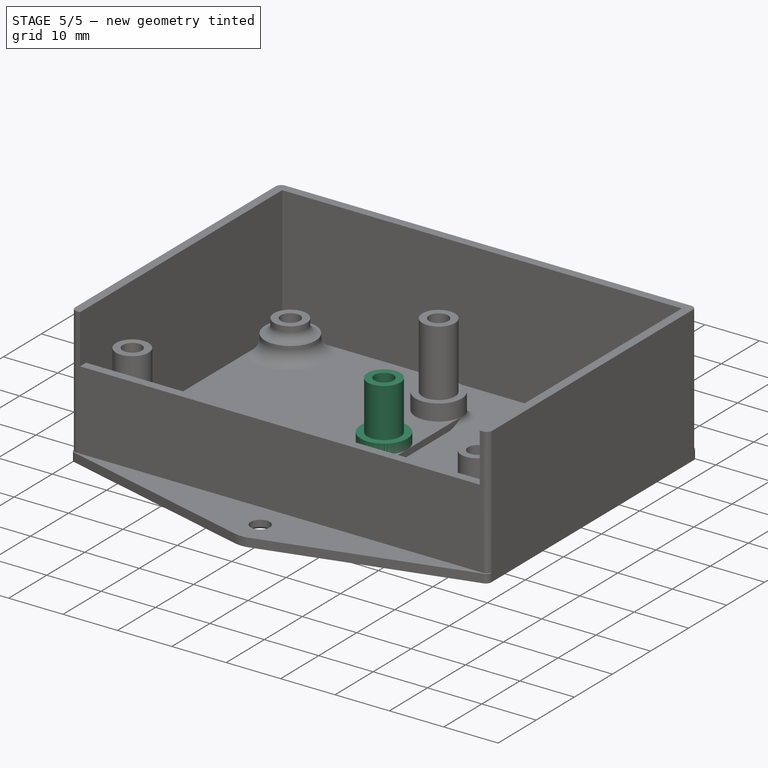
[diagram: stage 5 of 5 — iso view after this stage's code; geometry added in this stage tinted green]
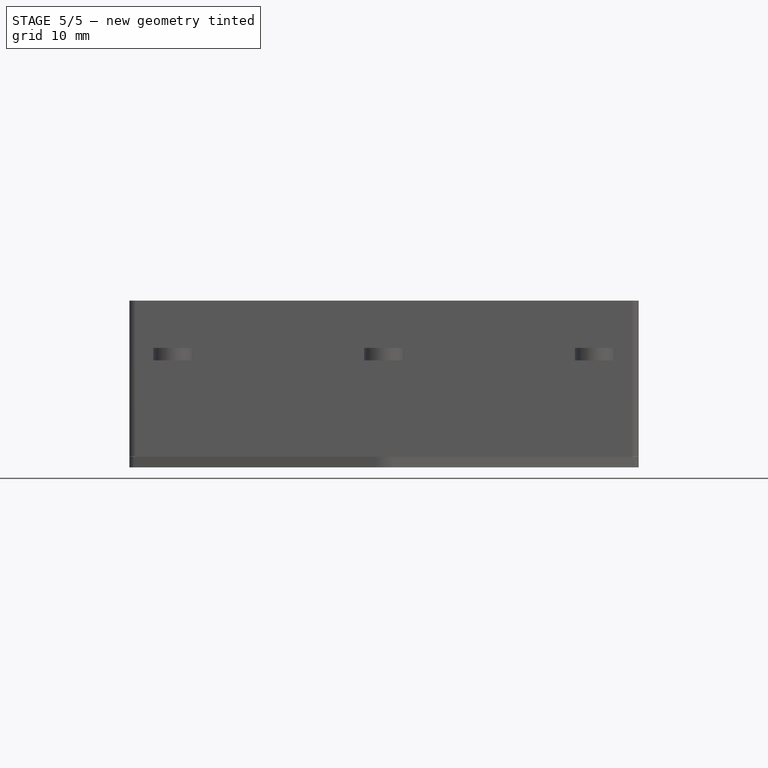
[diagram: stage 5 of 5 — front view after this stage's code; geometry added in this stage tinted green]
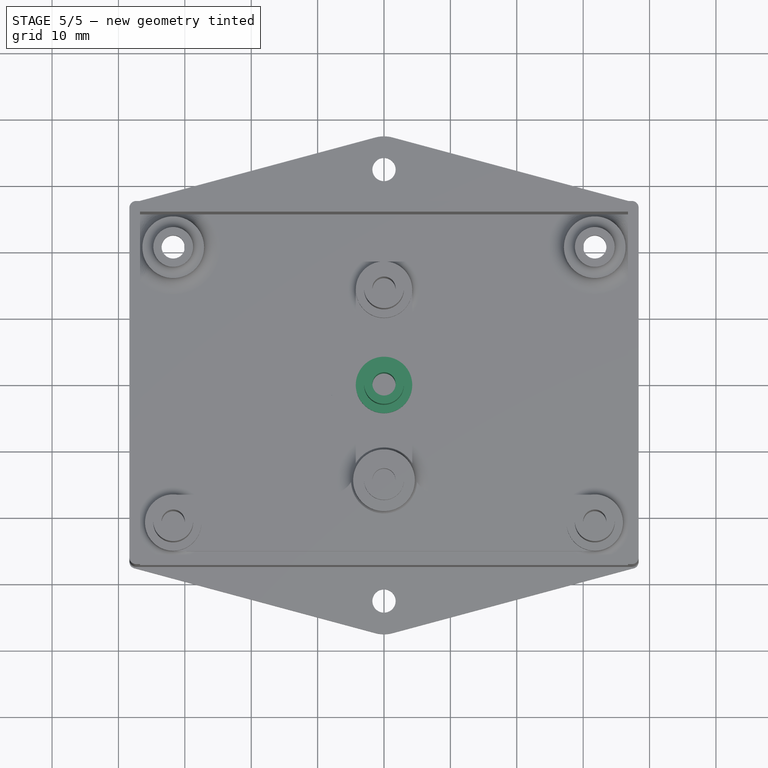
[diagram: stage 5 of 5 — top view after this stage's code; geometry added in this stage tinted green]
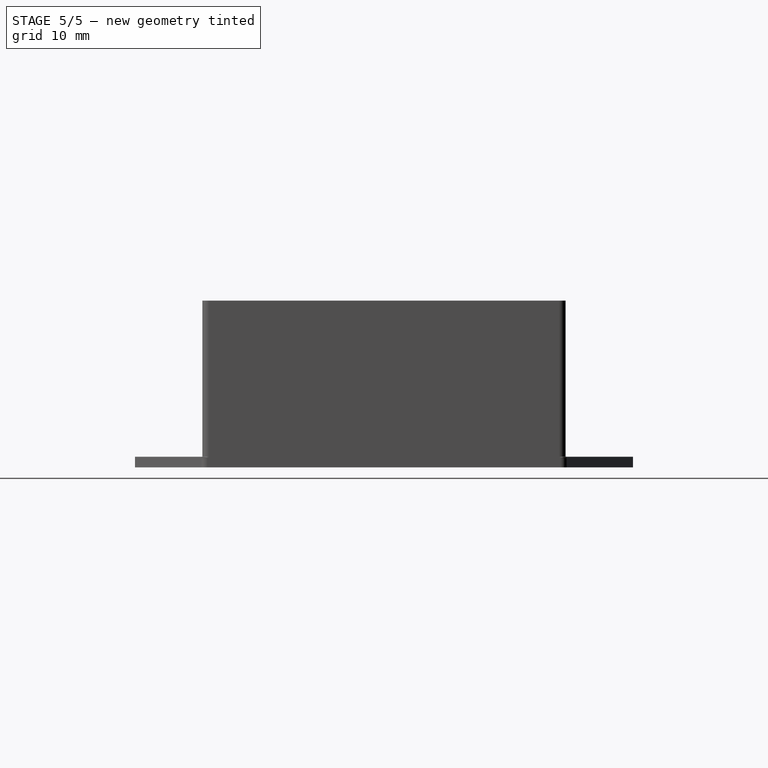
[diagram: stage 5 of 5 — right view after this stage's code; geometry added in this stage tinted green]
FEATURE [Sketcher::SketchObject] Sketch006
  sketch-geometry (1):
    g0: Circle CenterX=0 CenterY=0 CenterZ=0 NormalX=0 NormalY=0 NormalZ=1 Radius=8
  constraints (2):
    c: Coincident(g0,g-1)
    c: Radius(g0) = 8
FEATURE [PartDesign::Pad] Pad004
  Length = 1.6
  Length2 = 100
  Sketch = -> Sketch006
  Type = 0
FEATURE [Sketcher::SketchObject] Sketch007
  Placement = pos=(0,0,1.6) rot=(0,0,1;0rad)
  Support = -> Pad004 [Face3]
  sketch-geometry (2):
    g0: Circle CenterX=0 CenterY=0 CenterZ=0 NormalX=0 NormalY=0 NormalZ=1 Radius=4.25
    g1: Circle CenterX=0 CenterY=0 CenterZ=0 NormalX=0 NormalY=0 NormalZ=1 Radius=1.75
  constraints (4):
    c: Coincident(g0,g-1)
    c: Coincident(g1,g-1)
    c: Radius(g1) = 1.75
    c: Radius(g0) = 4.25
FEATURE [PartDesign::Pad] Pad005
  Length = 3
  Length2 = 100
  Sketch = -> Sketch007
  Type = 0
FEATURE [Sketcher::SketchObject] Sketch008
  Placement = pos=(0,0,0) rot=(1,0,0;3.14159rad)
  Support = -> Pad005 [Face2]
  sketch-geometry (7):
    g0: LineSegment StartX=1.65 StartY=-2.85788 StartZ=0 EndX=3.3 EndY=0 EndZ=0
    g1: LineSegment StartX=3.3 StartY=0 StartZ=0 EndX=1.65 EndY=2.85788 EndZ=0
    g2: LineSegment StartX=1.65 StartY=2.85788 StartZ=0 EndX=-1.65 EndY=2.85788 EndZ=0
    g3: LineSegment StartX=-1.65 StartY=2.85788 StartZ=0 EndX=-3.3 EndY=0 EndZ=0
    g4: LineSegment StartX=-3.3 StartY=0 StartZ=0 EndX=-1.65 EndY=-2.85788 EndZ=0
    g5: LineSegment StartX=-1.65 StartY=-2.85788 StartZ=0 EndX=1.65 EndY=-2.85788 EndZ=0
    g6: Circle [constr] CenterX=0 CenterY=0 CenterZ=0 NormalX=0 NormalY=0 NormalZ=1 Radius=3.3
  constraints (16):
    c: Coincident(g0,g1)
    c: Coincident(g1,g2)
    c: Coincident(g2,g3)
    c: Coincident(g3,g4)
    c: Coincident(g4,g5)
    c: Coincident(g5,g0)
    c: Equal(g0, g1-g5) x5
    c: PointOnObject(g0,g6)
    c: PointOnObject(g1,g6)
    c: PointOnObject(g2,g6)
    c: PointOnObject(g3,g6)
    c: PointOnObject(g4,g6)
    c: PointOnObject(g5,g6)
    c: Coincident(g6,g-1)
    c: Horizontal(g5)
    c: Radius(g6) = 3.3
FEATURE [PartDesign::Pocket] Pocket001
  Length = 3
  Sketch = -> Sketch008
  Type = 0
FEATURE [Sketcher::SketchObject] Sketch009
  Placement = pos=(0,0,4.6) rot=(0,0,1;0rad)
  Support = -> Pocket001 [Face12]
  sketch-geometry (2):
    g0: Circle CenterX=0 CenterY=0 CenterZ=0 NormalX=0 NormalY=0 NormalZ=1 Radius=1.75
    g1: Circle CenterX=0 CenterY=0 CenterZ=0 NormalX=0 NormalY=0 NormalZ=1 Radius=3
  constraints (4):
    c: Coincident(g0,g-1)
    c: Coincident(g1,g-1)
    c: Radius(g0) = 1.75
    c: Radius(g1) = 3
FEATURE [PartDesign::Pad] Pad006
  Length = 9
  Length2 = 100
  Sketch = -> Sketch009
  Type = 0
FEATURE [PartDesign::Chamfer] Chamfer001
  Base = -> Pad006 [Edge8,Edge9,Edge4,Edge5,Edge6,Edge7]
  Size = 0.4
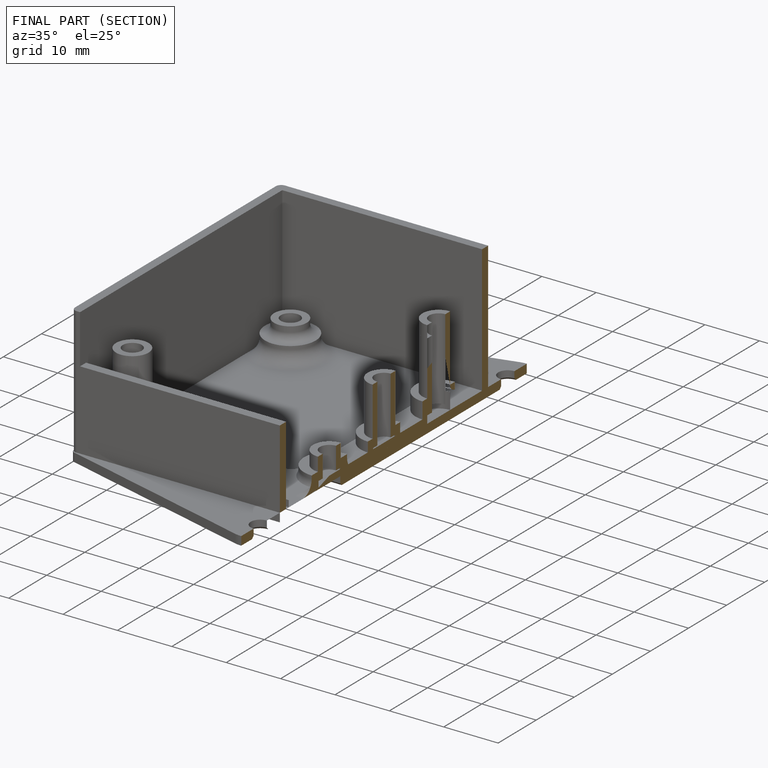
[diagram: finished part — half-section view (interior)]
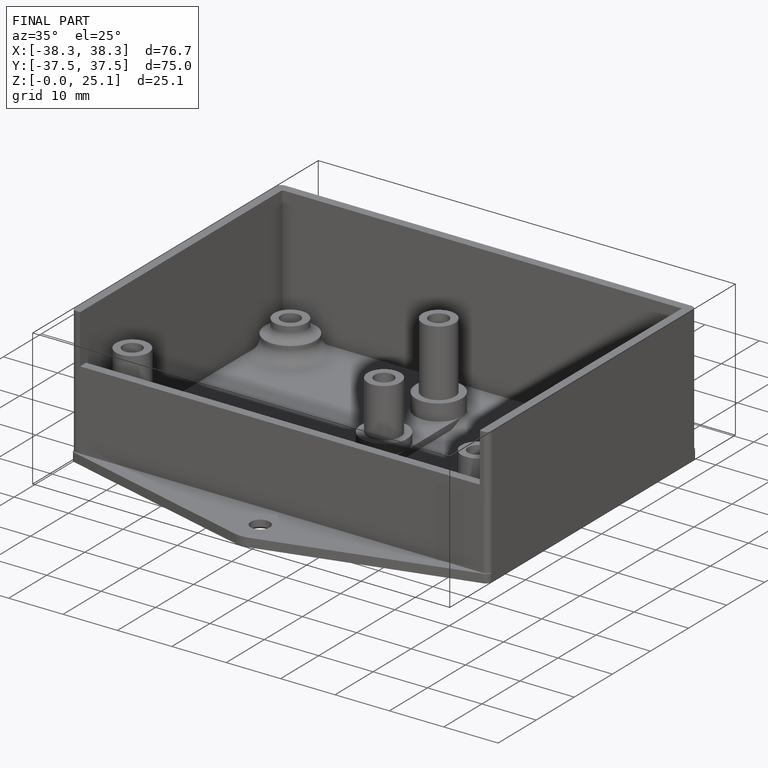
[diagram: finished part — iso view with bounding-box wireframe]
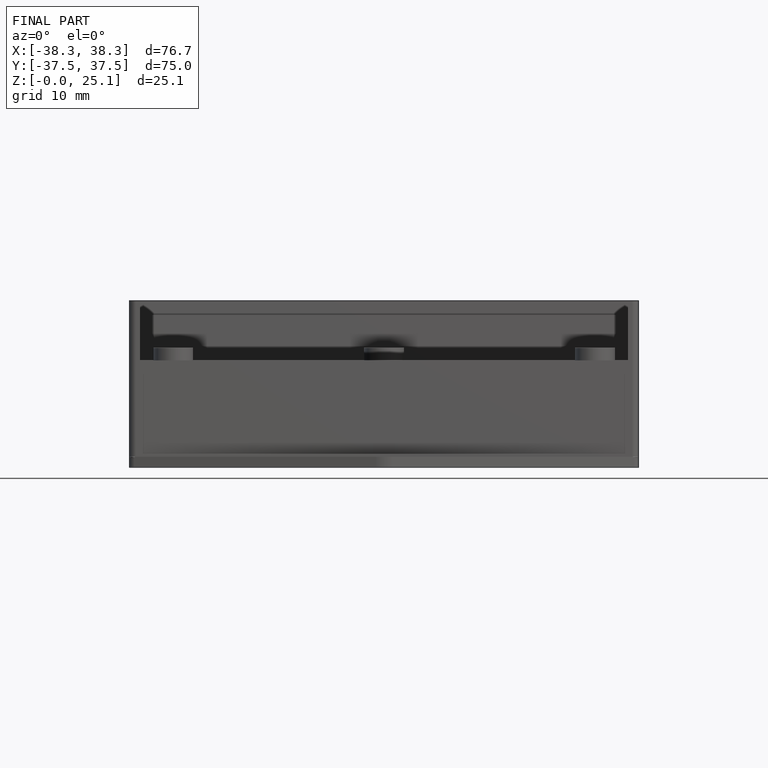
[diagram: finished part — front view with bounding-box wireframe]
